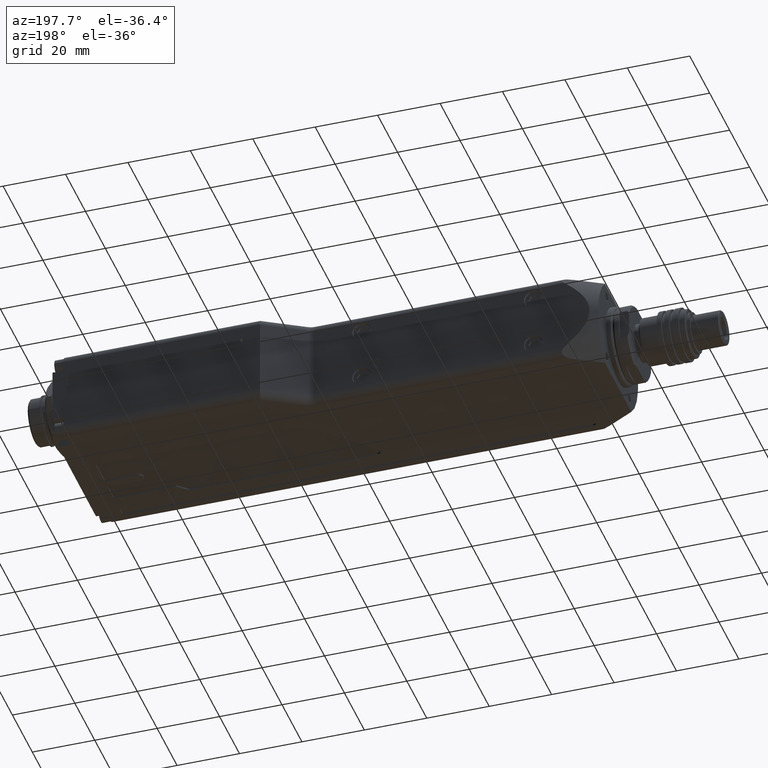
[diagram: clean part render]
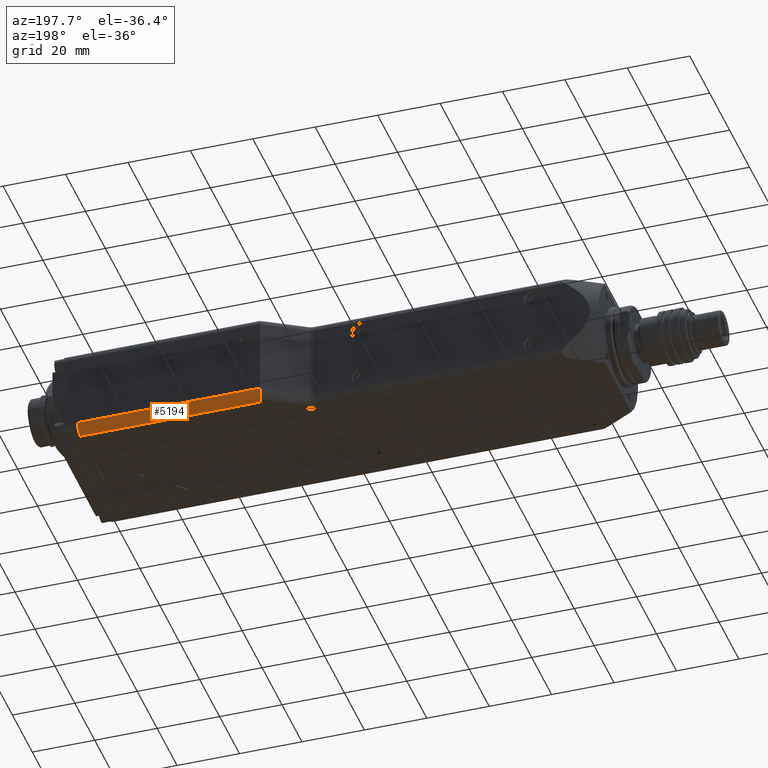
[diagram: same view with one face highlighted and labeled with its STEP entity id]
A machine part, auxiliary view. The second image highlights one B-rep face of the part: STEP entity #5194.
In plain terms, the highlighted cylindrical surface (edge-blend (fillet) strip) has radius 3 mm, axis along (-1, 0, 0).
Its self-contained STEP definition (entity closure, byte-faithful):
#132 = CARTESIAN_POINT ( 'NONE',  ( 139.5000000000000000, 28.99999999999999600, -12.00000000000000000 ) ) ;
#272 = CYLINDRICAL_SURFACE ( 'NONE', #6799, 2.999999999999999100 ) ;
#367 = DIRECTION ( 'NONE',  ( 1.000000000000000000, -0.0000000000000000000, 0.0000000000000000000 ) ) ;
#372 = CARTESIAN_POINT ( 'NONE',  ( 139.5000000000000000, 28.99999999999999600, -12.00000000000000000 ) ) ;
#527 = CARTESIAN_POINT ( 'NONE',  ( 140.3041695611895500, 25.99999999999999600, -15.00000000000000000 ) ) ;
#886 = DIRECTION ( 'NONE',  ( 0.0000000000000000000, 0.0000000000000000000, 1.000000000000000000 ) ) ;
#936 = LINE ( 'NONE', #132, #3045 ) ;
#1052 = VERTEX_POINT ( 'NONE', #10318 ) ;
#1113 = VERTEX_POINT ( 'NONE', #8709 ) ;
#1838 = ORIENTED_EDGE ( 'NONE', *, *, #6236, .F. ) ;
#2168 = CARTESIAN_POINT ( 'NONE',  ( 139.5000000000000000, 28.99999999999999600, -12.00000000000000000 ) ) ;
#2996 = CIRCLE ( 'NONE', #10584, 2.999999999999999100 ) ;
#3045 = VECTOR ( 'NONE', #3978, 1000.000000000000000 ) ;
#3055 = CARTESIAN_POINT ( 'NONE',  ( 139.5000000000000000, 29.00000000000000000, -13.75735931288071800 ) ) ;
#3087 = EDGE_CURVE ( 'NONE', #1052, #4802, #2996, .T. ) ;
#3603 = DIRECTION ( 'NONE',  ( 1.000000000000000000, -0.0000000000000000000, -0.0000000000000000000 ) ) ;
#3978 = DIRECTION ( 'NONE',  ( -1.000000000000000000, 0.0000000000000000000, 0.0000000000000000000 ) ) ;
#4243 = ORIENTED_EDGE ( 'NONE', *, *, #9543, .F. ) ;
#4288 = LINE ( 'NONE', #6694, #9806 ) ;
#4802 = VERTEX_POINT ( 'NONE', #9027 ) ;
#4897 = ORIENTED_EDGE ( 'NONE', *, *, #3087, .F. ) ;
#4937 = CARTESIAN_POINT ( 'NONE',  ( 139.8330979386923300, 27.75735931288070900, -15.00000000000000500 ) ) ;
#5194 = ADVANCED_FACE ( 'NONE', ( #9726 ), #272, .T. ) ;
#5370 = DIRECTION ( 'NONE',  ( 0.0000000000000000000, 0.0000000000000000000, 1.000000000000000000 ) ) ;
#5620 =( BOUNDED_CURVE ( )  B_SPLINE_CURVE ( 3, ( #372, #3055, #4937, #527 ),
 .UNSPECIFIED., .F., .F. ) 
 B_SPLINE_CURVE_WITH_KNOTS ( ( 4, 4 ),
 ( 3.141592653589793100, 4.712388980384690600 ),
 .UNSPECIFIED. ) 
 CURVE ( )  GEOMETRIC_REPRESENTATION_ITEM ( )  RATIONAL_B_SPLINE_CURVE ( ( 1.000000000000000000, 0.8047378541243648300, 0.8047378541243648300, 1.000000000000000000 ) ) 
 REPRESENTATION_ITEM ( '' )  );
#5780 = ORIENTED_EDGE ( 'NONE', *, *, #7196, .F. ) ;
#6236 = EDGE_CURVE ( 'NONE', #10727, #1113, #5620, .T. ) ;
#6593 = EDGE_LOOP ( 'NONE', ( #4897, #5780, #1838, #4243 ) ) ;
#6694 = CARTESIAN_POINT ( 'NONE',  ( 0.0000000000000000000, 26.00000000000000000, -15.00000000000000000 ) ) ;
#6799 = AXIS2_PLACEMENT_3D ( 'NONE', #7857, #6899, #886 ) ;
#6899 = DIRECTION ( 'NONE',  ( -1.000000000000000000, 0.0000000000000000000, 0.0000000000000000000 ) ) ;
#7196 = EDGE_CURVE ( 'NONE', #1113, #1052, #4288, .T. ) ;
#7857 = CARTESIAN_POINT ( 'NONE',  ( 139.5000000000000000, 26.00000000000000000, -12.00000000000000000 ) ) ;
#8101 = CARTESIAN_POINT ( 'NONE',  ( 198.0000000000000000, 26.00000000000000000, -12.00000000000000000 ) ) ;
#8709 = CARTESIAN_POINT ( 'NONE',  ( 140.3041695611895500, 25.99999999999999600, -15.00000000000000000 ) ) ;
#9027 = CARTESIAN_POINT ( 'NONE',  ( 198.0000000000000000, 28.99999999999999600, -12.00000000000000000 ) ) ;
#9543 = EDGE_CURVE ( 'NONE', #4802, #10727, #936, .T. ) ;
#9726 = FACE_OUTER_BOUND ( 'NONE', #6593, .T. ) ;
#9806 = VECTOR ( 'NONE', #367, 1000.000000000000000 ) ;
#10318 = CARTESIAN_POINT ( 'NONE',  ( 198.0000000000000000, 26.00000000000000000, -15.00000000000000000 ) ) ;
#10584 = AXIS2_PLACEMENT_3D ( 'NONE', #8101, #3603, #5370 ) ;
#10727 = VERTEX_POINT ( 'NONE', #2168 ) ;